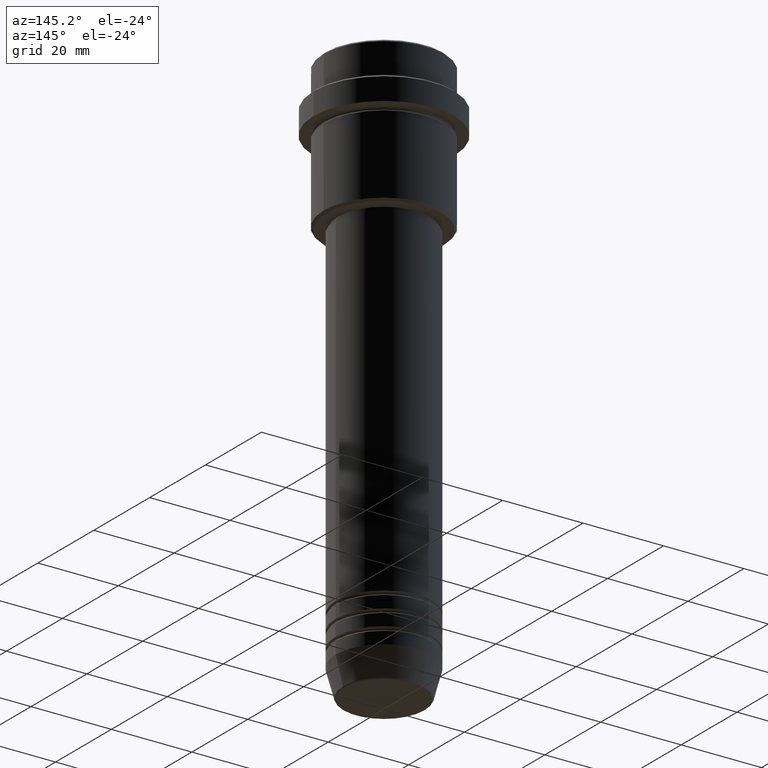
[diagram: clean part render]
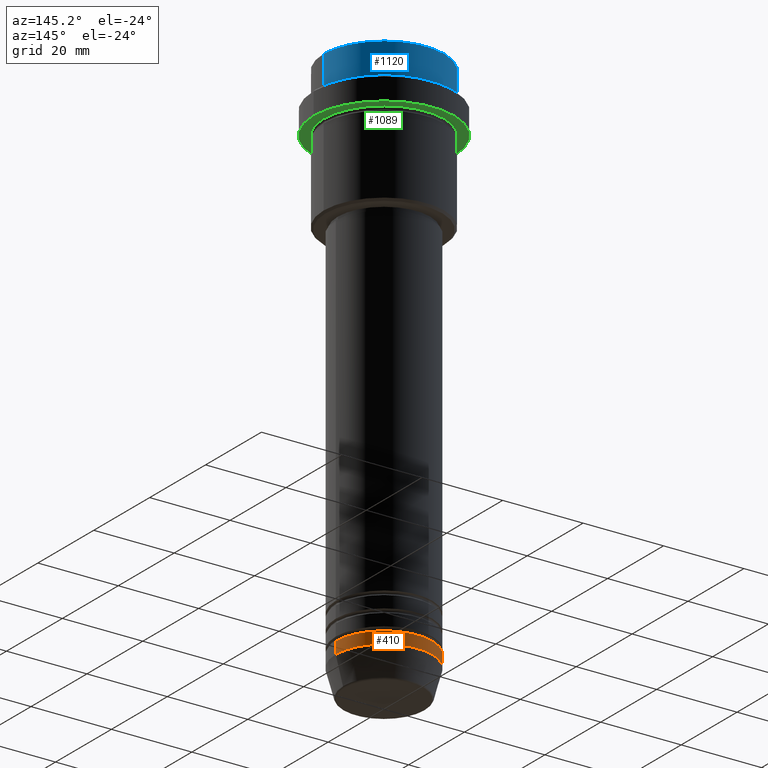
[diagram: same view with three faces highlighted in distinct colors, each labeled with its STEP entity id]
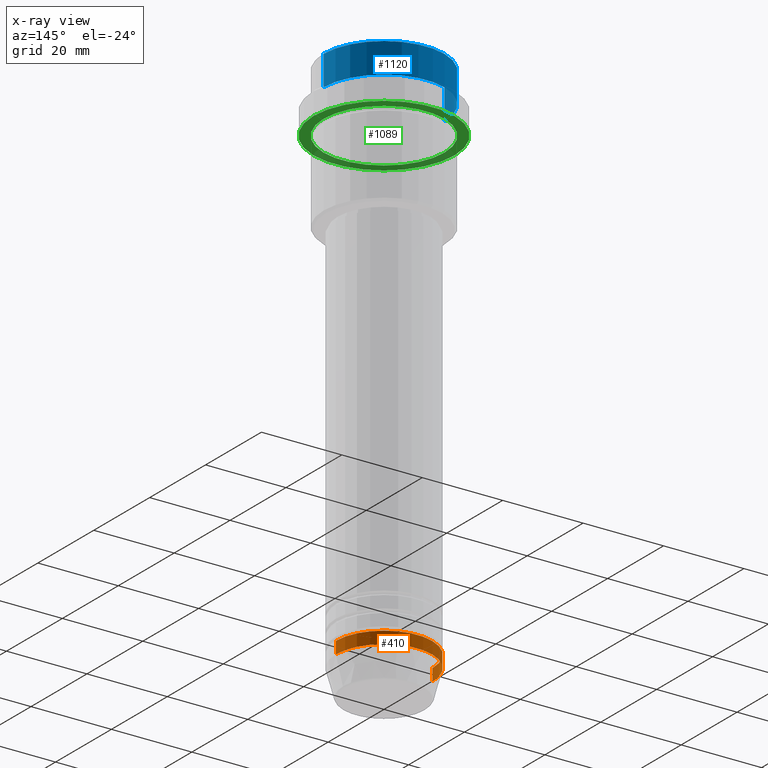
[diagram: x-ray of the same camera — body ghosted, the three highlighted faces saturated]
A machine part, auxiliary view with three faces highlighted in distinct colors.
The next image is the same camera in x-ray (body ghosted, the three faces saturated) — at least one of them is partly hidden behind the body in this view.
Their STEP definitions:

[orange] entity #410 — the highlighted cylindrical surface (partial cylindrical patch) has radius 12 mm, axis along (-0, -0, 1).
#13 = VECTOR ( 'NONE', #312, 1000.000000000000000 ) ;
#51 = DIRECTION ( 'NONE',  ( -0.000000000000000000, -0.000000000000000000, 1.000000000000000000 ) ) ;
#82 = DIRECTION ( 'NONE',  ( 1.000000000000000000, 0.000000000000000000, 0.000000000000000000 ) ) ;
#87 = CARTESIAN_POINT ( 'NONE',  ( -12.00000000000000000, 1.469576158976823947E-15, -133.9999999999999716 ) ) ;
#113 = CARTESIAN_POINT ( 'NONE',  ( 0.000000000000000000, 0.000000000000000000, -133.9999999999999716 ) ) ;
#177 = CARTESIAN_POINT ( 'NONE',  ( -12.00000000000000000, 1.469576158976823947E-15, -130.9999999999999716 ) ) ;
#258 = DIRECTION ( 'NONE',  ( -0.000000000000000000, -0.000000000000000000, 1.000000000000000000 ) ) ;
#264 = CARTESIAN_POINT ( 'NONE',  ( 12.00000000000000000, 0.000000000000000000, -133.9999999999999716 ) ) ;
#312 = DIRECTION ( 'NONE',  ( -0.000000000000000000, -0.000000000000000000, 1.000000000000000000 ) ) ;
#354 = CARTESIAN_POINT ( 'NONE',  ( 12.00000000000000000, 0.000000000000000000, 0.000000000000000000 ) ) ;
#379 = VECTOR ( 'NONE', #258, 1000.000000000000000 ) ;
#410 = ADVANCED_FACE ( 'NONE', ( #1371 ), #1154, .T. ) ;
#437 = VERTEX_POINT ( 'NONE', #177 ) ;
#499 = DIRECTION ( 'NONE',  ( 1.000000000000000000, 0.000000000000000000, 0.000000000000000000 ) ) ;
#550 = EDGE_CURVE ( 'NONE', #1312, #437, #1313, .T. ) ;
#584 = LINE ( 'NONE', #354, #379 ) ;
#620 = EDGE_CURVE ( 'NONE', #781, #1312, #1227, .T. ) ;
#642 = CARTESIAN_POINT ( 'NONE',  ( 0.000000000000000000, 0.000000000000000000, -130.9999999999999716 ) ) ;
#737 = EDGE_CURVE ( 'NONE', #781, #1019, #584, .T. ) ;
#781 = VERTEX_POINT ( 'NONE', #264 ) ;
#833 = DIRECTION ( 'NONE',  ( -0.000000000000000000, -0.000000000000000000, 1.000000000000000000 ) ) ;
#850 = DIRECTION ( 'NONE',  ( -0.000000000000000000, -0.000000000000000000, 1.000000000000000000 ) ) ;
#876 = AXIS2_PLACEMENT_3D ( 'NONE', #933, #833, #499 ) ;
#917 = ORIENTED_EDGE ( 'NONE', *, *, #550, .T. ) ;
#933 = CARTESIAN_POINT ( 'NONE',  ( 0.000000000000000000, 0.000000000000000000, 0.000000000000000000 ) ) ;
#969 = EDGE_CURVE ( 'NONE', #1019, #437, #1134, .T. ) ;
#973 = EDGE_LOOP ( 'NONE', ( #1282, #917, #1259, #975 ) ) ;
#975 = ORIENTED_EDGE ( 'NONE', *, *, #737, .F. ) ;
#976 = DIRECTION ( 'NONE',  ( 1.000000000000000000, 0.000000000000000000, 0.000000000000000000 ) ) ;
#1019 = VERTEX_POINT ( 'NONE', #1307 ) ;
#1087 = CARTESIAN_POINT ( 'NONE',  ( -12.00000000000000000, 1.469576158976823947E-15, 0.000000000000000000 ) ) ;
#1106 = AXIS2_PLACEMENT_3D ( 'NONE', #113, #850, #976 ) ;
#1134 = CIRCLE ( 'NONE', #1248, 12.00000000000000000 ) ;
#1154 = CYLINDRICAL_SURFACE ( 'NONE', #876, 12.00000000000000000 ) ;
#1227 = CIRCLE ( 'NONE', #1106, 12.00000000000000000 ) ;
#1248 = AXIS2_PLACEMENT_3D ( 'NONE', #642, #51, #82 ) ;
#1259 = ORIENTED_EDGE ( 'NONE', *, *, #969, .F. ) ;
#1282 = ORIENTED_EDGE ( 'NONE', *, *, #620, .T. ) ;
#1307 = CARTESIAN_POINT ( 'NONE',  ( 12.00000000000000000, 0.000000000000000000, -130.9999999999999716 ) ) ;
#1312 = VERTEX_POINT ( 'NONE', #87 ) ;
#1313 = LINE ( 'NONE', #1087, #13 ) ;
#1371 = FACE_OUTER_BOUND ( 'NONE', #973, .T. ) ;

[blue] entity #1120 — the highlighted cylindrical surface (partial cylindrical patch) has radius 15 mm, axis along (-0, -0, 1).
#61 = DIRECTION ( 'NONE',  ( 1.000000000000000000, 0.000000000000000000, 0.000000000000000000 ) ) ;
#75 = CARTESIAN_POINT ( 'NONE',  ( 15.00000000000000000, 0.000000000000000000, -0.5000000000000247580 ) ) ;
#98 = CYLINDRICAL_SURFACE ( 'NONE', #121, 15.00000000000000000 ) ;
#121 = AXIS2_PLACEMENT_3D ( 'NONE', #1216, #652, #560 ) ;
#160 = VERTEX_POINT ( 'NONE', #1088 ) ;
#169 = DIRECTION ( 'NONE',  ( 1.000000000000000000, 0.000000000000000000, 0.000000000000000000 ) ) ;
#229 = CARTESIAN_POINT ( 'NONE',  ( 15.00000000000000000, 0.000000000000000000, 0.000000000000000000 ) ) ;
#306 = ORIENTED_EDGE ( 'NONE', *, *, #473, .T. ) ;
#322 = VERTEX_POINT ( 'NONE', #925 ) ;
#343 = DIRECTION ( 'NONE',  ( -0.000000000000000000, -0.000000000000000000, 1.000000000000000000 ) ) ;
#360 = EDGE_CURVE ( 'NONE', #809, #1308, #1081, .T. ) ;
#449 = CARTESIAN_POINT ( 'NONE',  ( 15.00000000000000000, 0.000000000000000000, -7.999999999999998224 ) ) ;
#473 = EDGE_CURVE ( 'NONE', #322, #1308, #1130, .T. ) ;
#510 = VECTOR ( 'NONE', #1285, 1000.000000000000000 ) ;
#522 = CARTESIAN_POINT ( 'NONE',  ( -15.00000000000000000, 1.836970198721029589E-15, 0.000000000000000000 ) ) ;
#560 = DIRECTION ( 'NONE',  ( 1.000000000000000000, 0.000000000000000000, 0.000000000000000000 ) ) ;
#578 = CIRCLE ( 'NONE', #1376, 15.00000000000000000 ) ;
#607 = DIRECTION ( 'NONE',  ( 0.000000000000000000, 0.000000000000000000, -1.000000000000000000 ) ) ;
#617 = LINE ( 'NONE', #522, #510 ) ;
#626 = ORIENTED_EDGE ( 'NONE', *, *, #1292, .T. ) ;
#652 = DIRECTION ( 'NONE',  ( -0.000000000000000000, -0.000000000000000000, 1.000000000000000000 ) ) ;
#796 = CARTESIAN_POINT ( 'NONE',  ( 0.000000000000000000, 0.000000000000000000, -7.999999999999998224 ) ) ;
#809 = VERTEX_POINT ( 'NONE', #449 ) ;
#835 = AXIS2_PLACEMENT_3D ( 'NONE', #940, #607, #61 ) ;
#925 = CARTESIAN_POINT ( 'NONE',  ( -15.00000000000000000, 1.836970198721029589E-15, -0.5000000000000247580 ) ) ;
#940 = CARTESIAN_POINT ( 'NONE',  ( 0.000000000000000000, 0.000000000000000000, -0.5000000000000247580 ) ) ;
#974 = ORIENTED_EDGE ( 'NONE', *, *, #1394, .T. ) ;
#1081 = LINE ( 'NONE', #229, #1196 ) ;
#1088 = CARTESIAN_POINT ( 'NONE',  ( -15.00000000000000000, 1.836970198721029589E-15, -7.999999999999998224 ) ) ;
#1120 = ADVANCED_FACE ( 'NONE', ( #1222 ), #98, .T. ) ;
#1130 = CIRCLE ( 'NONE', #835, 15.00000000000000000 ) ;
#1196 = VECTOR ( 'NONE', #343, 1000.000000000000000 ) ;
#1216 = CARTESIAN_POINT ( 'NONE',  ( 0.000000000000000000, 0.000000000000000000, 0.000000000000000000 ) ) ;
#1222 = FACE_OUTER_BOUND ( 'NONE', #1352, .T. ) ;
#1232 = DIRECTION ( 'NONE',  ( -0.000000000000000000, -0.000000000000000000, 1.000000000000000000 ) ) ;
#1285 = DIRECTION ( 'NONE',  ( -0.000000000000000000, -0.000000000000000000, 1.000000000000000000 ) ) ;
#1288 = ORIENTED_EDGE ( 'NONE', *, *, #360, .F. ) ;
#1292 = EDGE_CURVE ( 'NONE', #809, #160, #578, .T. ) ;
#1308 = VERTEX_POINT ( 'NONE', #75 ) ;
#1352 = EDGE_LOOP ( 'NONE', ( #626, #974, #306, #1288 ) ) ;
#1376 = AXIS2_PLACEMENT_3D ( 'NONE', #796, #1232, #169 ) ;
#1394 = EDGE_CURVE ( 'NONE', #160, #322, #617, .T. ) ;

[green] entity #1089 — the highlighted planar face has unit normal (0, 0, -1).
#23 = ORIENTED_EDGE ( 'NONE', *, *, #88, .F. ) ;
#36 = CARTESIAN_POINT ( 'NONE',  ( 0.000000000000000000, 0.000000000000000000, -15.00000000000000000 ) ) ;
#41 = CARTESIAN_POINT ( 'NONE',  ( 0.000000000000000000, 0.000000000000000000, -15.00000000000000000 ) ) ;
#80 = DIRECTION ( 'NONE',  ( -0.000000000000000000, -0.000000000000000000, 1.000000000000000000 ) ) ;
#88 = EDGE_CURVE ( 'NONE', #790, #330, #920, .T. ) ;
#124 = FACE_OUTER_BOUND ( 'NONE', #765, .T. ) ;
#133 = AXIS2_PLACEMENT_3D ( 'NONE', #41, #1324, #478 ) ;
#143 = CARTESIAN_POINT ( 'NONE',  ( -17.50000000000000000, 2.143131898507868248E-15, -15.00000000000000000 ) ) ;
#167 = CARTESIAN_POINT ( 'NONE',  ( 0.000000000000000000, 0.000000000000000000, -15.00000000000000000 ) ) ;
#178 = CARTESIAN_POINT ( 'NONE',  ( -14.99999999999999467, 0.000000000000000000, -15.00000000000000000 ) ) ;
#208 = AXIS2_PLACEMENT_3D ( 'NONE', #1064, #780, #321 ) ;
#219 = AXIS2_PLACEMENT_3D ( 'NONE', #167, #80, #1390 ) ;
#241 = ORIENTED_EDGE ( 'NONE', *, *, #787, .T. ) ;
#284 = CIRCLE ( 'NONE', #1219, 17.50000000000000000 ) ;
#300 = CARTESIAN_POINT ( 'NONE',  ( 0.000000000000000000, 0.000000000000000000, -15.00000000000000000 ) ) ;
#320 = CARTESIAN_POINT ( 'NONE',  ( 17.50000000000000000, 0.000000000000000000, -15.00000000000000000 ) ) ;
#321 = DIRECTION ( 'NONE',  ( -1.000000000000000000, 0.000000000000000000, -0.000000000000000000 ) ) ;
#330 = VERTEX_POINT ( 'NONE', #320 ) ;
#344 = PLANE ( 'NONE',  #208 ) ;
#438 = VERTEX_POINT ( 'NONE', #929 ) ;
#478 = DIRECTION ( 'NONE',  ( -1.000000000000000000, 0.000000000000000000, 0.000000000000000000 ) ) ;
#511 = EDGE_CURVE ( 'NONE', #438, #1331, #878, .T. ) ;
#693 = ORIENTED_EDGE ( 'NONE', *, *, #511, .T. ) ;
#701 = AXIS2_PLACEMENT_3D ( 'NONE', #36, #800, #744 ) ;
#704 = CIRCLE ( 'NONE', #133, 14.99999999999999467 ) ;
#744 = DIRECTION ( 'NONE',  ( 1.000000000000000000, 0.000000000000000000, 0.000000000000000000 ) ) ;
#765 = EDGE_LOOP ( 'NONE', ( #870, #23 ) ) ;
#773 = FACE_BOUND ( 'NONE', #1085, .T. ) ;
#780 = DIRECTION ( 'NONE',  ( 0.000000000000000000, 0.000000000000000000, -1.000000000000000000 ) ) ;
#787 = EDGE_CURVE ( 'NONE', #1331, #438, #704, .T. ) ;
#790 = VERTEX_POINT ( 'NONE', #143 ) ;
#800 = DIRECTION ( 'NONE',  ( -0.000000000000000000, -0.000000000000000000, 1.000000000000000000 ) ) ;
#870 = ORIENTED_EDGE ( 'NONE', *, *, #1358, .F. ) ;
#878 = CIRCLE ( 'NONE', #219, 14.99999999999999467 ) ;
#920 = CIRCLE ( 'NONE', #701, 17.50000000000000000 ) ;
#929 = CARTESIAN_POINT ( 'NONE',  ( 14.99999999999999467, 1.836970198721029194E-15, -15.00000000000000000 ) ) ;
#948 = DIRECTION ( 'NONE',  ( -0.000000000000000000, -0.000000000000000000, 1.000000000000000000 ) ) ;
#1035 = DIRECTION ( 'NONE',  ( 1.000000000000000000, 0.000000000000000000, 0.000000000000000000 ) ) ;
#1064 = CARTESIAN_POINT ( 'NONE',  ( 0.000000000000000000, 17.50000000000000000, -15.00000000000000000 ) ) ;
#1085 = EDGE_LOOP ( 'NONE', ( #241, #693 ) ) ;
#1089 = ADVANCED_FACE ( 'NONE', ( #773, #124 ), #344, .T. ) ;
#1219 = AXIS2_PLACEMENT_3D ( 'NONE', #300, #948, #1035 ) ;
#1324 = DIRECTION ( 'NONE',  ( -0.000000000000000000, -0.000000000000000000, 1.000000000000000000 ) ) ;
#1331 = VERTEX_POINT ( 'NONE', #178 ) ;
#1358 = EDGE_CURVE ( 'NONE', #330, #790, #284, .T. ) ;
#1390 = DIRECTION ( 'NONE',  ( -1.000000000000000000, 0.000000000000000000, 0.000000000000000000 ) ) ;